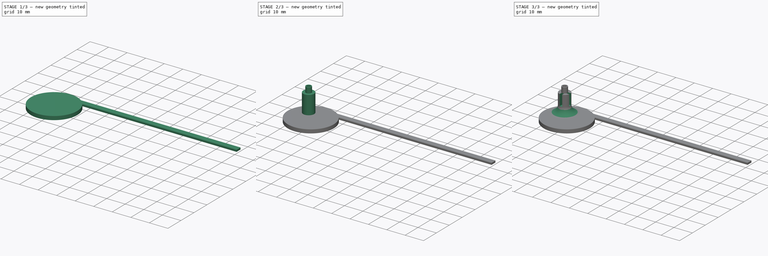
[diagram: build sequence overview — one tinted view per stage of 3, left to right]
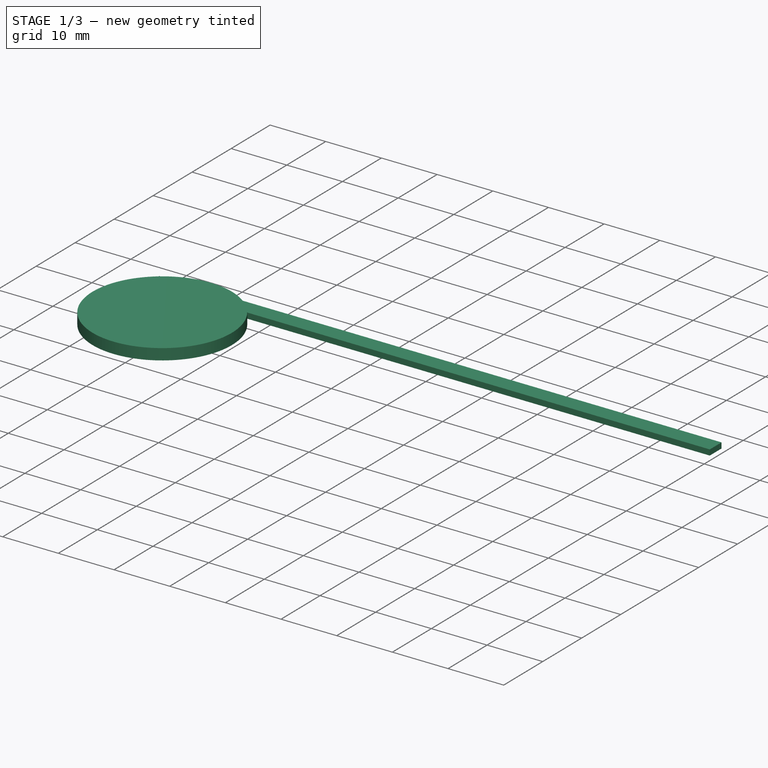
[diagram: stage 1 of 3 — iso view after this stage's code; geometry added in this stage tinted green]
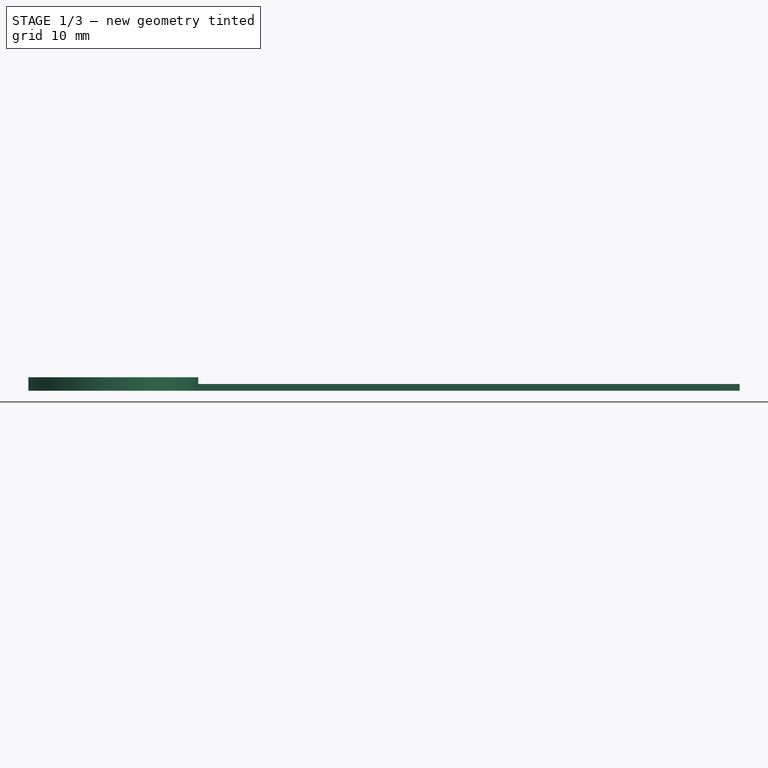
[diagram: stage 1 of 3 — front view after this stage's code; geometry added in this stage tinted green]
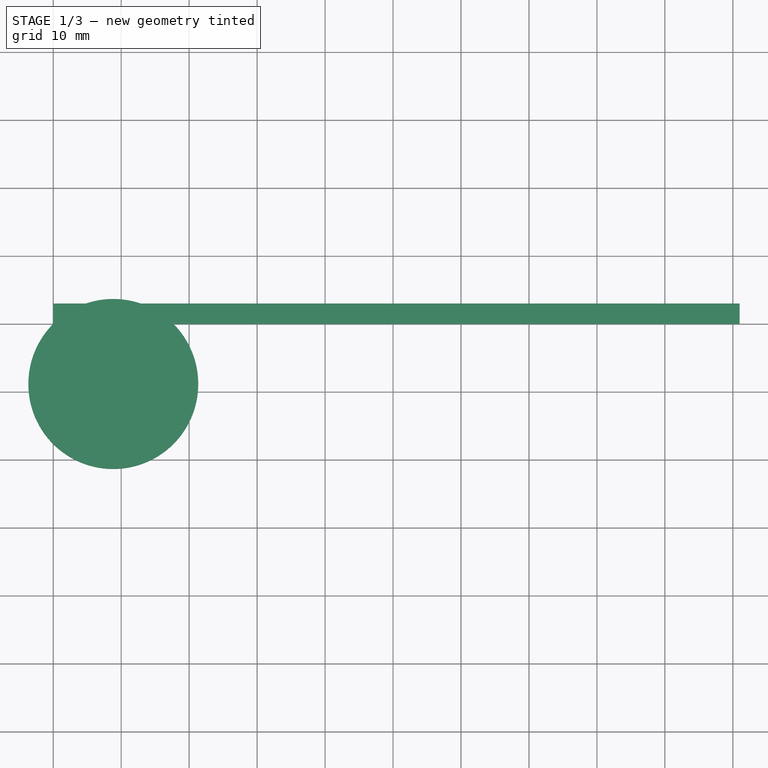
[diagram: stage 1 of 3 — top view after this stage's code; geometry added in this stage tinted green]
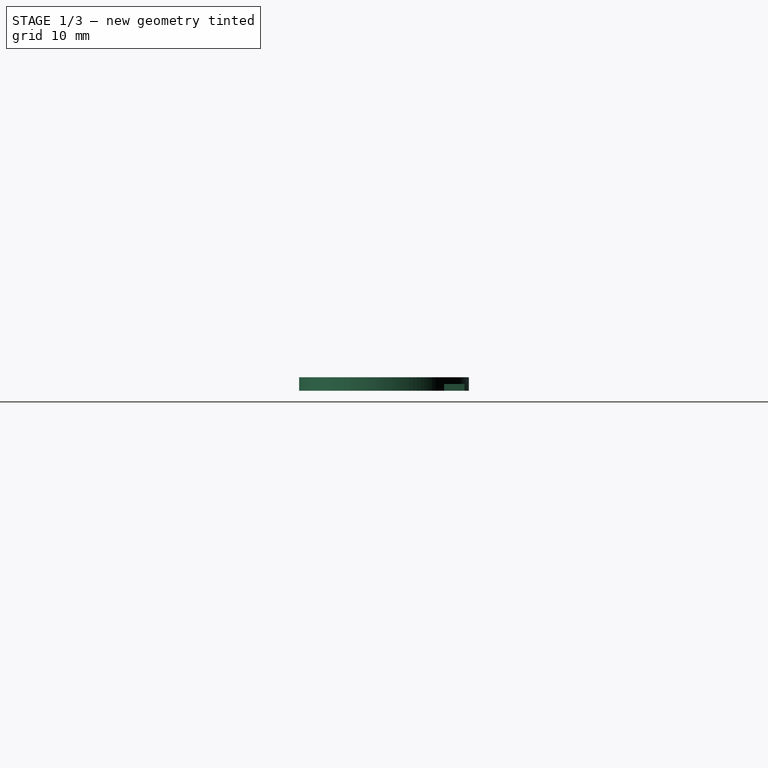
[diagram: stage 1 of 3 — right view after this stage's code; geometry added in this stage tinted green]
FCSTD DOCUMENT  (FreeCAD 1.0RUnknown)
Label: standoff
License: All rights reserved
LicenseURL: http://en.wikipedia.org/wiki/All_rights_reserved
objects: Sketcher::SketchObject×8, PartDesign::Pad×5, PartDesign::Plane×3, PartDesign::Body×3, PartDesign::Line×2, PartDesign::Revolution×1, PartDesign::Pocket×1, PartDesign::PolarPattern×1
note: 47 computed .brp shape members not serialized (recipe doc carries the construction recipe); baked Part::Feature solids carry a one-line shape summary decoded from their .brp

FEATURE [Sketcher::SketchObject] Sketch  label="board footprint"
  ArcFitTolerance = 1e-06
  AttachmentSupport = -> [XY_Plane]
  FullyConstrained = true
  MakeInternals = false
  MapMode = 5
  sketch-geometry (8):
    g0: LineSegment StartX=0 StartY=0 StartZ=0 EndX=0 EndY=-105 EndZ=0
    g1: LineSegment StartX=0 StartY=-105 StartZ=0 EndX=97.5 EndY=-105 EndZ=0
    g2: LineSegment StartX=97.5 StartY=-105 StartZ=0 EndX=97.5 EndY=0 EndZ=0
    g3: LineSegment StartX=97.5 StartY=0 StartZ=0 EndX=0 EndY=0 EndZ=0
    g4: Circle CenterX=5 CenterY=-5 CenterZ=0 NormalX=0 NormalY=0 NormalZ=1 AngleXU=0 Radius=1.6
    g5: Circle CenterX=92.5 CenterY=-5 CenterZ=0 NormalX=0 NormalY=0 NormalZ=1 AngleXU=0 Radius=1.6
    g6: Circle CenterX=92.5 CenterY=-100 CenterZ=0 NormalX=0 NormalY=0 NormalZ=1 AngleXU=0 Radius=1.6
    g7: Circle CenterX=5 CenterY=-100 CenterZ=0 NormalX=0 NormalY=0 NormalZ=1 AngleXU=0 Radius=1.6
  constraints (23):
    c: Coincident(g0,g1)
    c: Coincident(g1,g2)
    c: Coincident(g2,g3)
    c: Coincident(g3,g0)
    c: Vertical(g0)
    c: Vertical(g2)
    c: Horizontal(g1)
    c: Horizontal(g3)
    c: Distance(g0,g2) = 97.5
    c: Distance(g1,g3) = 105
    c: Coincident(g0,g-1)
    c: Diameter(g4) = 3.2
    c: DistanceY(g4) = -5
    c: DistanceX(g4) = 5
    c: Equal(g4,g5)
    c: Equal(g5,g6)
    c: Equal(g6,g7)
    c: DistanceY(g0,g7) = 5
    c: DistanceX(g0,g7) = 5
    c: DistanceY(g1,g6) = 5
    c: DistanceX(g6,g1) = 5
    c: DistanceY(g5,g2) = 5
    c: DistanceX(g5,g2) = 5
FEATURE [Sketcher::SketchObject] Sketch001
  ArcFitTolerance = 1e-06
  AttachmentSupport = -> [XY_Plane]
  ExternalGeometry = -> [Sketch]
  FullyConstrained = true
  MakeInternals = false
  MapMode = 5
  sketch-geometry (2):
    g0: Circle CenterX=8.83883 CenterY=-8.83883 CenterZ=0 NormalX=0 NormalY=0 NormalZ=1 AngleXU=0 Radius=12.5
    g1: LineSegment [constr] StartX=0 StartY=0 StartZ=0 EndX=8.83883 EndY=-8.83883 EndZ=0
  constraints (5):
    c: Diameter(g0) = 25
    c: PointOnObject(g-1,g0)
    c: Coincident(g1,g-1)
    c: Coincident(g1,g0)
    c: PointOnObject(g-3,g1)
FEATURE [PartDesign::Pad] Pad  label="base"
  Direction = (0,0,1)
  Length = 2
  Length2 = 10
  Profile = -> Sketch001
  ReferenceAxis = -> Sketch001 [N_Axis]
  Refine = true
  Suppressed = false
  Type = 0
FEATURE [PartDesign::Body] Body  label="standoff001"
  AllowCompound = false
  Group = -> [Sketch,Sketch001,Pad,DatumLine,DatumPlane,Sketch002,Pad001,Sketch003,Pad002,DatumLine001,DatumPlane001,Sketch004,Revolution,Sketch005,DatumPlane002,Pocket,PolarPattern]
  Origin = -> Origin
  Tip = -> PolarPattern
FEATURE [Sketcher::SketchObject] Sketch006
  ArcFitTolerance = 1e-06
  AttachmentSupport = -> [XY_Plane001]
  FullyConstrained = true
  MakeInternals = false
  MapMode = 5
  sketch-geometry (4):
    g0: LineSegment StartX=0 StartY=0 StartZ=0 EndX=93.5 EndY=0 EndZ=0
    g1: LineSegment StartX=93.5 StartY=0 StartZ=0 EndX=93.5 EndY=3 EndZ=0
    g2: LineSegment StartX=93.5 StartY=3 StartZ=0 EndX=0 EndY=3 EndZ=0
    g3: LineSegment StartX=0 StartY=3 StartZ=0 EndX=0 EndY=0 EndZ=0
  constraints (11):
    c: Coincident(g0,g1)
    c: Coincident(g1,g2)
    c: Coincident(g2,g3)
    c: Coincident(g3,g0)
    c: Horizontal(g0)
    c: Horizontal(g2)
    c: Vertical(g1)
    c: Vertical(g3)
    c: Distance(g1,g3) = 93.5
    c: Distance(g0,g2) = 3
    c: Coincident(g0,g-1)
FEATURE [PartDesign::Pad] Pad003
  Direction = (0,0,1)
  Length = 1
  Length2 = 10
  Profile = -> Sketch006
  ReferenceAxis = -> Sketch006 [N_Axis]
  Refine = true
  Suppressed = false
  Type = 0
FEATURE [PartDesign::Body] Body001  label="beam x"
  AllowCompound = false
  Group = -> [Sketch006,Pad003]
  Origin = -> Origin001
  Tip = -> Pad003
FEATURE [Sketcher::SketchObject] Sketch007
  ArcFitTolerance = 1e-06
  AttachmentSupport = -> [XY_Plane002]
  FullyConstrained = true
  MakeInternals = false
  MapMode = 5
  sketch-geometry (4):
    g0: LineSegment StartX=0 StartY=0 StartZ=0 EndX=101 EndY=0 EndZ=0
    g1: LineSegment StartX=101 StartY=0 StartZ=0 EndX=101 EndY=3 EndZ=0
    g2: LineSegment StartX=101 StartY=3 StartZ=0 EndX=0 EndY=3 EndZ=0
    g3: LineSegment StartX=0 StartY=3 StartZ=0 EndX=0 EndY=0 EndZ=0
  constraints (11):
    c: Coincident(g0,g1)
    c: Coincident(g1,g2)
    c: Coincident(g2,g3)
    c: Coincident(g3,g0)
    c: Horizontal(g0)
    c: Horizontal(g2)
    c: Vertical(g1)
    c: Vertical(g3)
    c: Distance(g1,g3) = 101
    c: Distance(g0,g2) = 3
    c: Coincident(g0,g-1)
FEATURE [PartDesign::Pad] Pad004
  Direction = (0,0,1)
  Length = 1
  Length2 = 10
  Profile = -> Sketch007
  ReferenceAxis = -> Sketch007 [N_Axis]
  Refine = true
  Suppressed = false
  Type = 0
FEATURE [PartDesign::Body] Body002  label="beam y"
  AllowCompound = false
  Group = -> [Sketch007,Pad004]
  Origin = -> Origin002
  Tip = -> Pad004
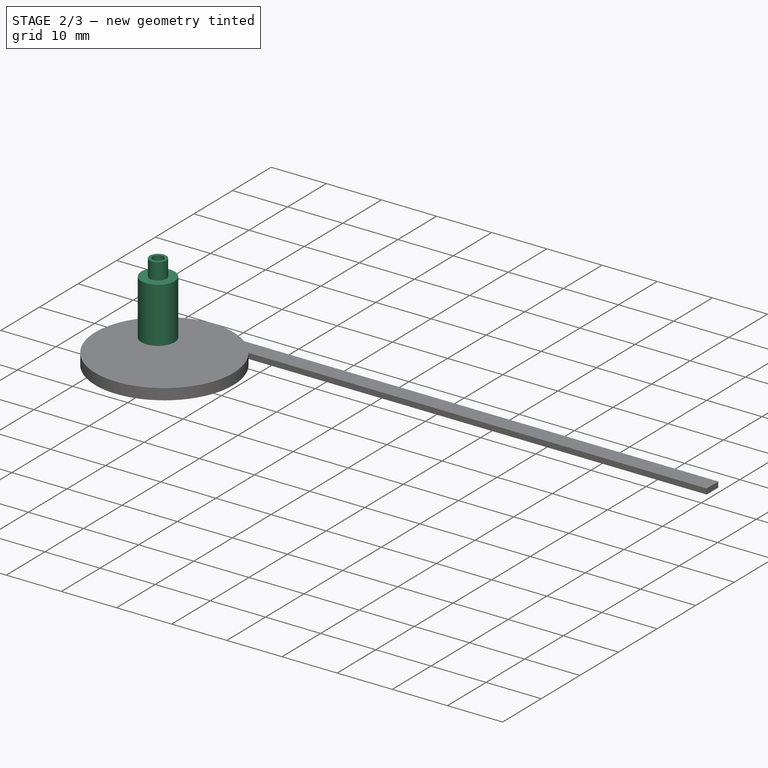
[diagram: stage 2 of 3 — iso view after this stage's code; geometry added in this stage tinted green]
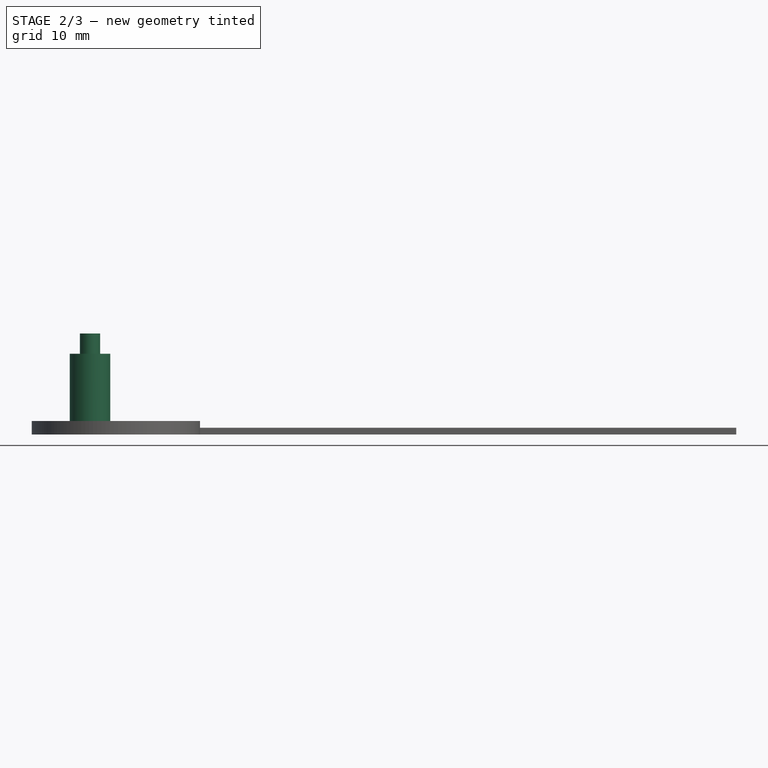
[diagram: stage 2 of 3 — front view after this stage's code; geometry added in this stage tinted green]
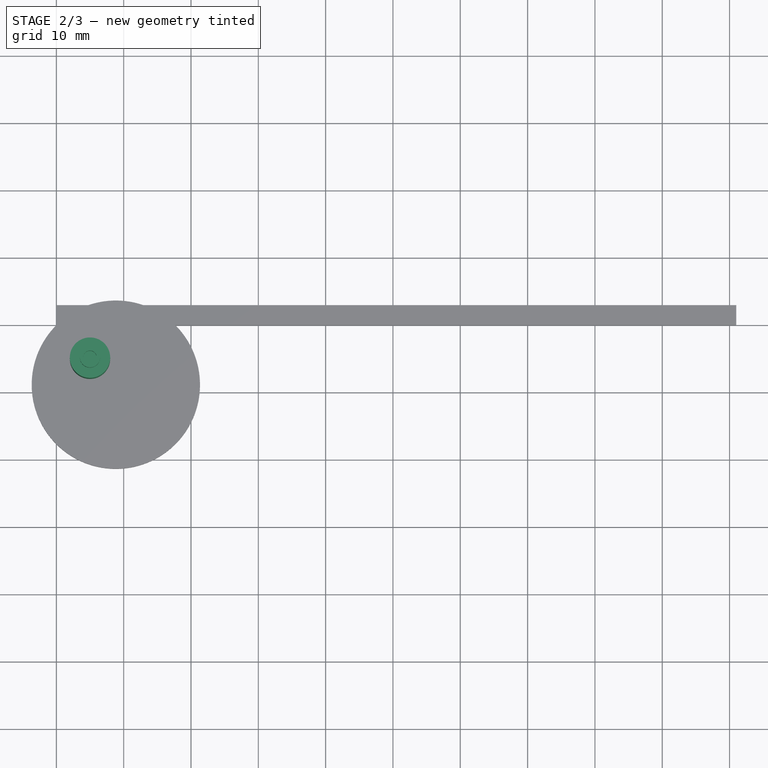
[diagram: stage 2 of 3 — top view after this stage's code; geometry added in this stage tinted green]
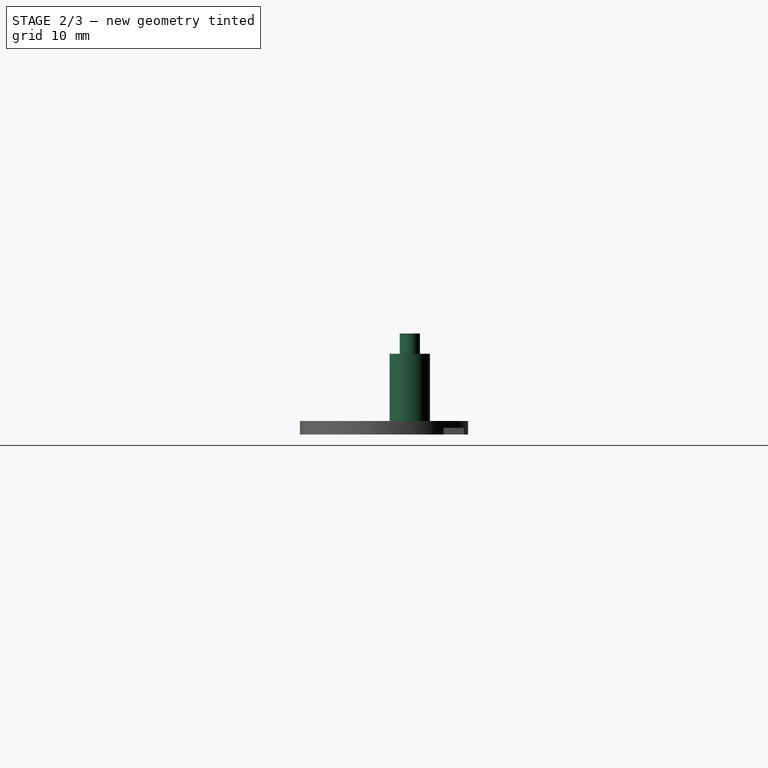
[diagram: stage 2 of 3 — right view after this stage's code; geometry added in this stage tinted green]
FEATURE [PartDesign::Line] DatumLine  label="hole"
  AttacherType = Attacher::AttachEngineLine
  AttachmentSupport = -> [Sketch]
  Length = 20
  MapMode = 19
  Placement = pos=(5,-5,0) rot=(0,0,1;0rad)
  ResizeMode = 0
FEATURE [PartDesign::Plane] DatumPlane  label="board bottom"
  AttachmentOffset = pos=(0,0,10) rot=(0,0,1;0rad)
  AttachmentSupport = -> [Pad]
  Length = 147.739
  MapMode = 5
  Placement = pos=(0,0,12) rot=(0,0,1;0rad)
  ResizeMode = 0
  Width = 155.239
FEATURE [Sketcher::SketchObject] Sketch002
  ArcFitTolerance = 1e-06
  AttachmentSupport = -> [XY_Plane]
  ExternalGeometry = -> [Sketch]
  FullyConstrained = true
  MakeInternals = false
  MapMode = 5
  sketch-geometry (1):
    g0: Circle CenterX=5 CenterY=-5 CenterZ=0 NormalX=0 NormalY=0 NormalZ=1 AngleXU=0 Radius=3
  constraints (2):
    c: Diameter(g0) = 6
    c: Coincident(g0,g-3)
FEATURE [PartDesign::Pad] Pad001  label="standoff"
  BaseFeature = -> Pad
  Direction = (0,0,1)
  Length = 10
  Length2 = 10
  Profile = -> Sketch002
  ReferenceAxis = -> Sketch002 [N_Axis]
  Refine = true
  Suppressed = false
  Type = 3
  UpToFace = -> DatumPlane [Plane]
FEATURE [Sketcher::SketchObject] Sketch003
  ArcFitTolerance = 1e-06
  AttachmentSupport = -> [Pad001]
  ExternalGeometry = -> [Pad001]
  FullyConstrained = true
  MakeInternals = false
  MapMode = 5
  Placement = pos=(0,0,12) rot=(0,0,1;0rad)
  sketch-geometry (3):
    g0: Circle CenterX=5 CenterY=-5 CenterZ=0 NormalX=0 NormalY=0 NormalZ=1 AngleXU=0 Radius=1.5
    g1: Circle CenterX=5 CenterY=-5 CenterZ=0 NormalX=0 NormalY=0 NormalZ=1 AngleXU=0 Radius=1
    g2: LineSegment [constr] StartX=5 StartY=-4 StartZ=0 EndX=5 EndY=-3.5 EndZ=0
  constraints (8):
    c: Diameter(g0) = 3
    c: Coincident(g0,g-3)
    c: Coincident(g1,g0)
    c: PointOnObject(g2,g1)
    c: PointOnObject(g2,g0)
    c: Vertical(g2)
    c: Vertical(g2,g0)
    c: DistanceY(g2,g2) = 0.5
FEATURE [PartDesign::Pad] Pad002  label="dowel"
  BaseFeature = -> Pad001
  Direction = (0,0,1)
  Length = 3
  Length2 = 10
  Profile = -> Sketch003
  ReferenceAxis = -> Sketch003 [N_Axis]
  Refine = true
  Suppressed = false
  Type = 0
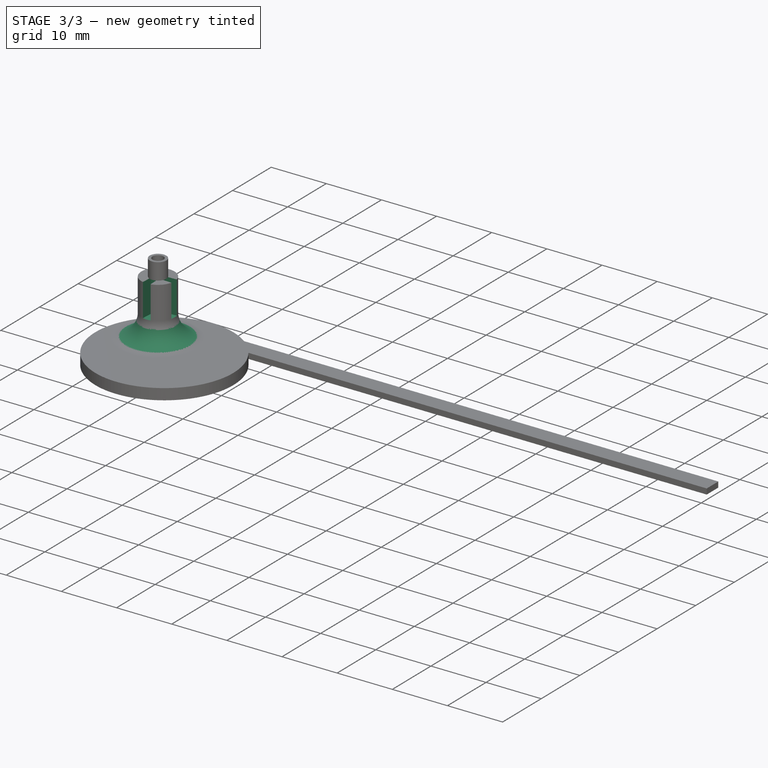
[diagram: stage 3 of 3 — iso view after this stage's code; geometry added in this stage tinted green]
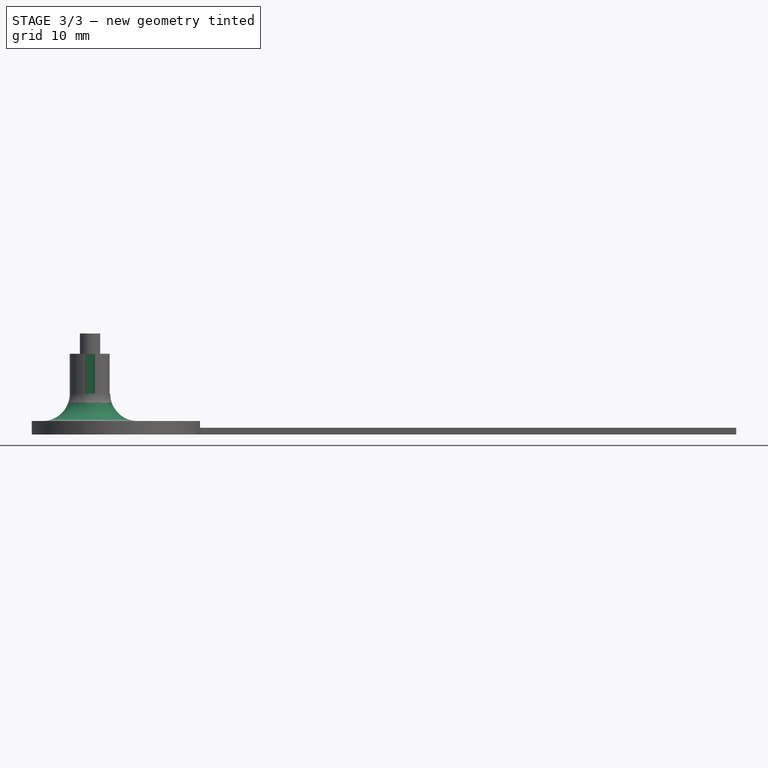
[diagram: stage 3 of 3 — front view after this stage's code; geometry added in this stage tinted green]
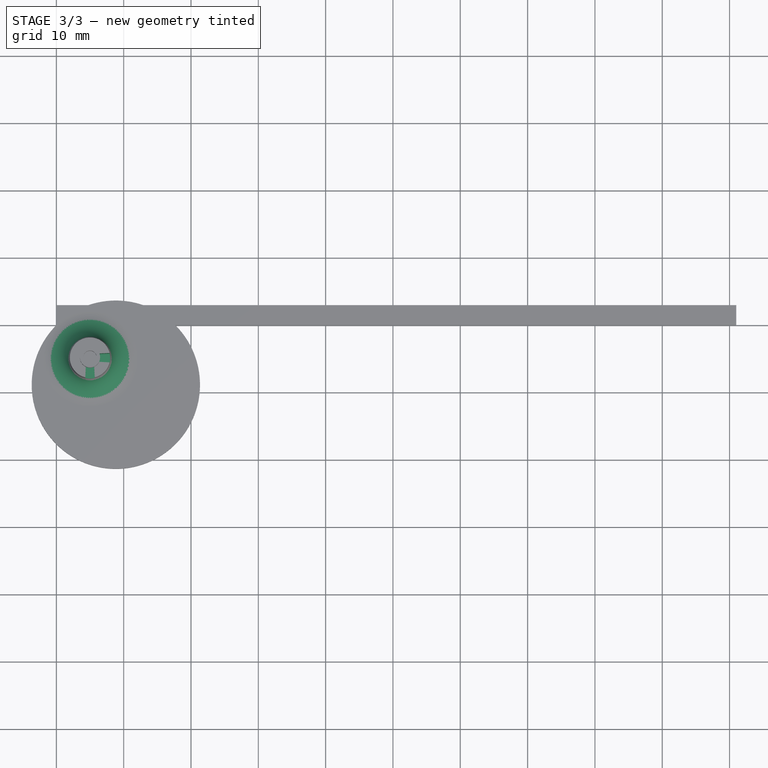
[diagram: stage 3 of 3 — top view after this stage's code; geometry added in this stage tinted green]
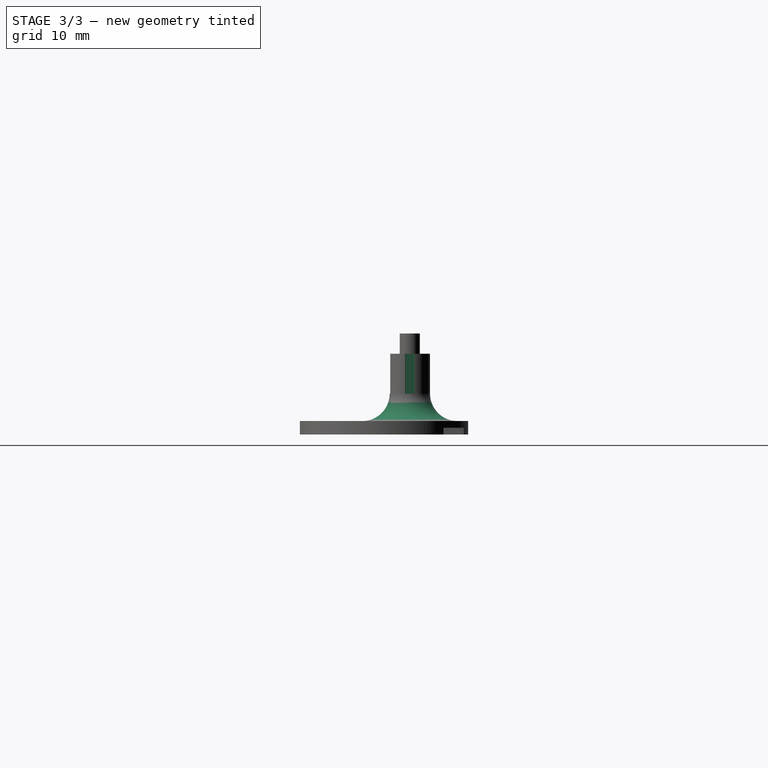
[diagram: stage 3 of 3 — right view after this stage's code; geometry added in this stage tinted green]
FEATURE [PartDesign::Line] DatumLine001  label="diagonal hole"
  AttacherType = Attacher::AttachEngineLine
  AttachmentSupport = -> [Sketch]
  Length = 20
  MapMode = 19
  Placement = pos=(92.5,-100,0) rot=(0,0,1;0rad)
  ResizeMode = 0
FEATURE [PartDesign::Plane] DatumPlane001  label="diagonal"
  AttachmentSupport = -> [DatumLine001,DatumLine]
  Length = 197.512
  MapMode = 13
  Placement = pos=(63.3333,-68.3333,0.333333) rot=(0.849861,-0.37265,-0.37265;1.73277rad)
  ResizeMode = 0
  Width = 68.9004
FEATURE [Sketcher::SketchObject] Sketch004
  ArcFitTolerance = 1e-06
  AttachmentSupport = -> [DatumPlane001]
  ExternalGeometry = -> [Pad002,DatumLine]
  FullyConstrained = true
  MakeInternals = false
  MapMode = 5
  Placement = pos=(63.3333,-68.3333,0.333333) rot=(0.849861,-0.37265,-0.37265;1.73277rad)
  sketch-geometry (4):
    g0: ArcOfCircle CenterX=-93.1796 CenterY=5.74231 CenterZ=0 NormalX=0 NormalY=0 NormalZ=1 AngleXU=0 Radius=4.07565 StartAngle=4.71239 EndAngle=6.28319
    g1: LineSegment StartX=-89.1039 StartY=5.74231 StartZ=0 EndX=-86.1039 EndY=5.74231 EndZ=0
    g2: LineSegment StartX=-86.1039 StartY=5.74231 StartZ=0 EndX=-86.1039 EndY=1.66667 EndZ=0
    g3: LineSegment StartX=-86.1039 StartY=1.66667 StartZ=0 EndX=-93.1796 EndY=1.66667 EndZ=0
  constraints (12):
    c: Coincident(g0,g-3)
    c: Vertical(g0,g0)
    c: Horizontal(g0,g0)
    c: Coincident(g2,g1)
    c: Coincident(g3,g2)
    c: Coincident(g3,g0)
    c: Vertical(g2)
    c: Horizontal(g3)
    c: Coincident(g1,g0)
    c: Horizontal(g1)
    c: Vertical(g0,g-4)
    c: PointOnObject(g1,g-5)
FEATURE [PartDesign::Revolution] Revolution
  Angle = 360
  Angle2 = 60
  Axis = (0,0,1)
  Base = (5,-5,0)
  BaseFeature = -> Pad002
  Midplane = true
  Profile = -> Sketch004
  ReferenceAxis = -> DatumLine
  Refine = true
  Suppressed = false
  Type = 0
FEATURE [Sketcher::SketchObject] Sketch005
  ArcFitTolerance = 1e-06
  AttachmentSupport = -> [DatumPlane]
  ExternalGeometry = -> [DatumLine,Revolution]
  FullyConstrained = true
  MakeInternals = false
  MapMode = 5
  Placement = pos=(0,0,12) rot=(0,0,1;0rad)
  sketch-geometry (7):
    g0: LineSegment StartX=6 StartY=-4.4 StartZ=0 EndX=6 EndY=-5.6 EndZ=0
    g1: ArcOfCircle CenterX=5 CenterY=-5 CenterZ=0 NormalX=0 NormalY=0 NormalZ=1 AngleXU=0 Radius=3.57553 StartAngle=6.07728 EndAngle=6.48909
    g2: LineSegment [constr] StartX=5 StartY=-5 StartZ=0 EndX=8.57553 EndY=-5 EndZ=0
    g3: LineSegment StartX=6 StartY=-4.4 StartZ=0 EndX=8.5 EndY=-4.26898 EndZ=0
    g4: LineSegment StartX=6 StartY=-5.6 StartZ=0 EndX=8.5 EndY=-5.73102 EndZ=0
    g5: GeomPoint [constr] X=8.5 Y=-5 Z=0
    g6: LineSegment [constr] StartX=8.5 StartY=-4.26898 StartZ=0 EndX=6.5 EndY=-4.26898 EndZ=0
  constraints (19):
    c: Symmetric(g0,g0,g-5)
    c: Vertical(g0)
    c: DistanceY(g0,g0) = 1.2
    c: Coincident(g1,g-3)
    c: Coincident(g2,g1)
    c: PointOnObject(g2,g1)
    c: Horizontal(g2)
    c: Coincident(g3,g0)
    c: Coincident(g3,g1)
    c: Coincident(g4,g0)
    c: Coincident(g4,g1)
    c: Angle(g4,g3) = 0.10472
    c: PointOnObject(g5,g2)
    c: Vertical(g1,g5)
    c: Vertical(g5,g1)
    c: Coincident(g6,g1)
    c: Vertical(g6,g-4)
    c: Horizontal(g6)
    c: DistanceX(g6,g6) = 2
FEATURE [PartDesign::Plane] DatumPlane002  label="top of fillet"
  AttachmentSupport = -> [Revolution]
  Length = 155.239
  MapMode = 11
  Placement = pos=(5,-5,6.07565) rot=(0,0,1;1.5708rad)
  ResizeMode = 0
  Width = 147.739
FEATURE [PartDesign::Pocket] Pocket  label="slot"
  BaseFeature = -> Revolution
  Direction = (0,0,-1)
  Length = 0
  Length2 = 5
  Profile = -> Sketch005
  ReferenceAxis = -> Sketch005 [N_Axis]
  Refine = true
  Suppressed = false
  Type = 3
  UpToFace = -> DatumPlane002 [Plane]
FEATURE [PartDesign::PolarPattern] PolarPattern
  Angle = 90
  Axis = -> DatumLine
  BaseFeature = -> Pocket
  Mode = 0
  Occurrences = 2
  Offset = 120
  Originals = -> [Pocket]
  Refine = true
  Reversed = true
  Suppressed = false
  TransformMode = 0
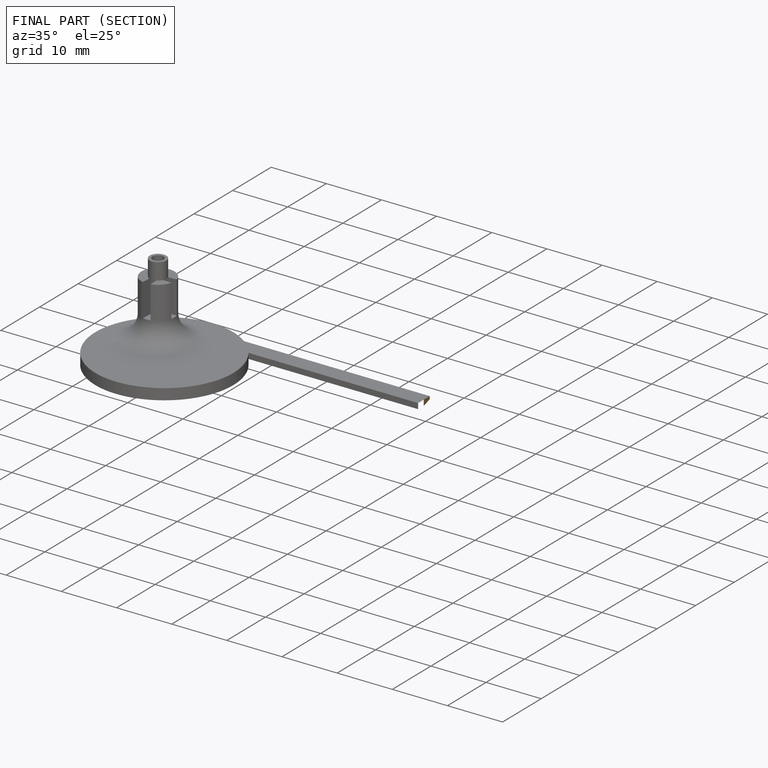
[diagram: finished part — half-section view (interior)]
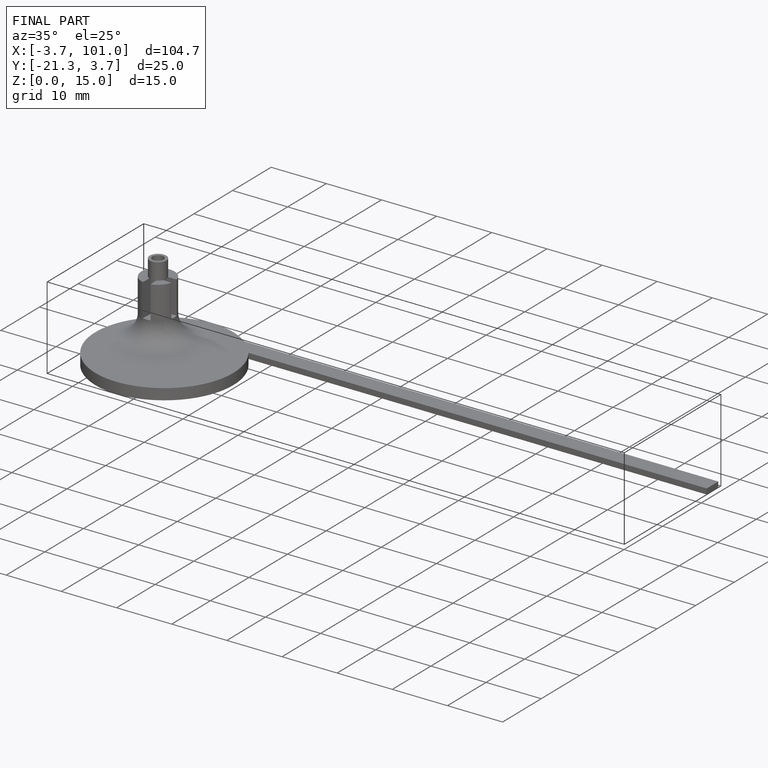
[diagram: finished part — iso view with bounding-box wireframe]
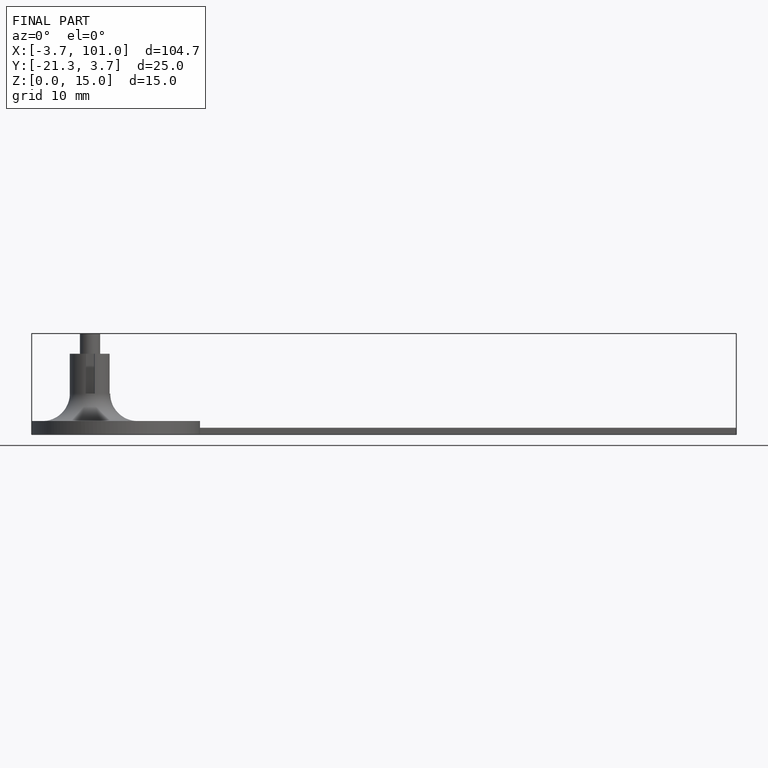
[diagram: finished part — front view with bounding-box wireframe]
